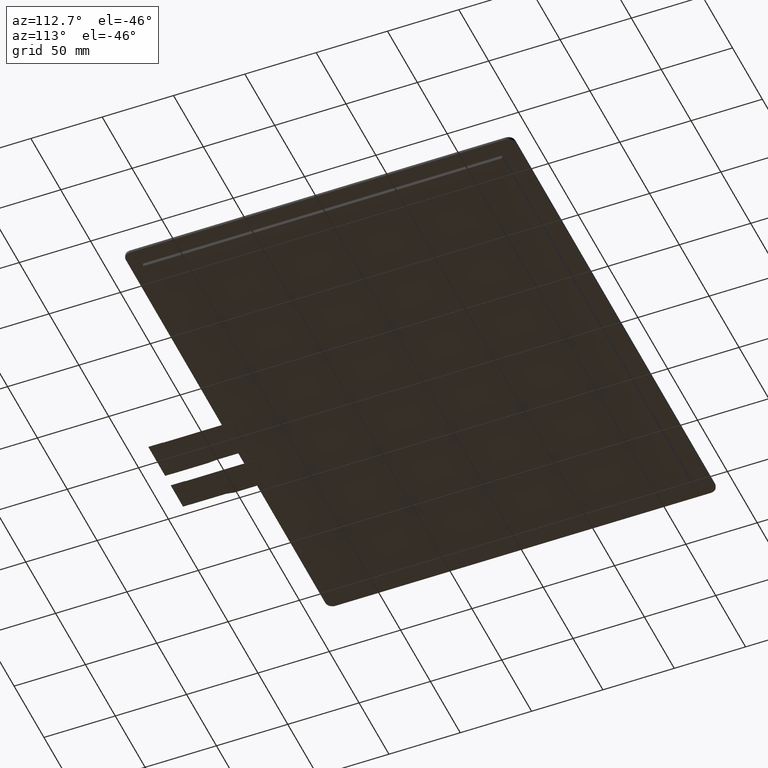
[diagram: clean part render]
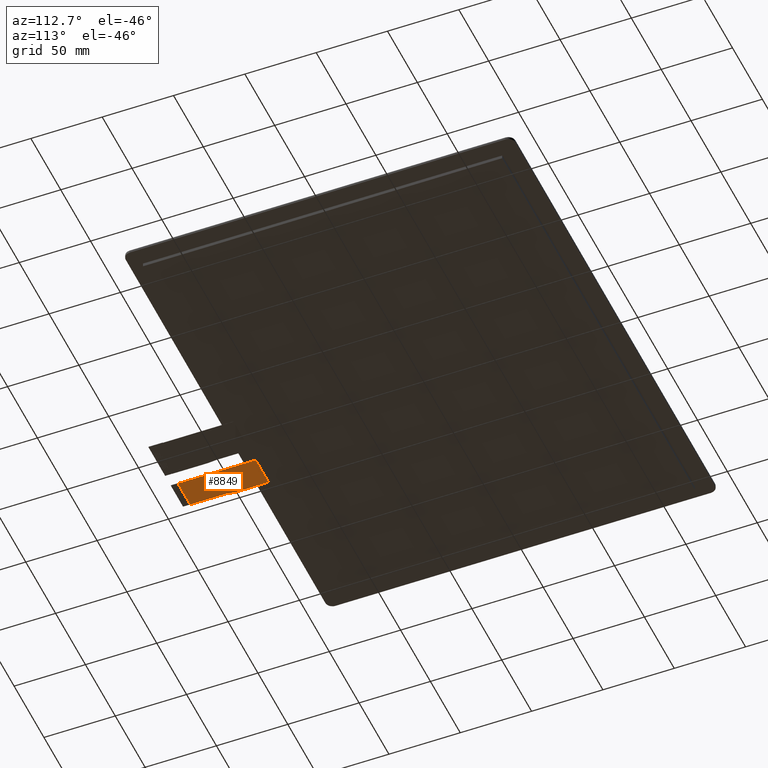
[diagram: same view with one face highlighted and labeled with its STEP entity id]
A machine part, auxiliary view. The second image highlights one B-rep face of the part: STEP entity #8849.
In plain terms, the highlighted planar face has unit normal (0, 0, -1).
Its self-contained STEP definition (entity closure, byte-faithful):
#482=FACE_OUTER_BOUND('',#909,.T.);
#909=EDGE_LOOP('',(#7967,#7968,#7969,#7970,#7971,#7972));
#2108=LINE('',#13835,#3353);
#2122=LINE('',#13862,#3367);
#2146=LINE('',#13911,#3391);
#2151=LINE('',#13922,#3396);
#2154=LINE('',#13926,#3399);
#2156=LINE('',#13930,#3401);
#3353=VECTOR('',#11319,10.);
#3367=VECTOR('',#11341,10.);
#3391=VECTOR('',#11389,10.);
#3396=VECTOR('',#11396,10.);
#3399=VECTOR('',#11401,10.);
#3401=VECTOR('',#11407,10.);
#4215=VERTEX_POINT('',#13832);
#4216=VERTEX_POINT('',#13834);
#4225=VERTEX_POINT('',#13860);
#4238=VERTEX_POINT('',#13910);
#4242=VERTEX_POINT('',#13919);
#4243=VERTEX_POINT('',#13921);
#5446=EDGE_CURVE('',#4216,#4215,#2108,.T.);
#5460=EDGE_CURVE('',#4215,#4225,#2122,.T.);
#5484=EDGE_CURVE('',#4238,#4216,#2146,.T.);
#5489=EDGE_CURVE('',#4243,#4242,#2151,.T.);
#5492=EDGE_CURVE('',#4225,#4243,#2154,.T.);
#5494=EDGE_CURVE('',#4238,#4242,#2156,.T.);
#7967=ORIENTED_EDGE('',*,*,#5446,.T.);
#7968=ORIENTED_EDGE('',*,*,#5460,.T.);
#7969=ORIENTED_EDGE('',*,*,#5492,.T.);
#7970=ORIENTED_EDGE('',*,*,#5489,.T.);
#7971=ORIENTED_EDGE('',*,*,#5494,.F.);
#7972=ORIENTED_EDGE('',*,*,#5484,.T.);
#8424=PLANE('',#9306);
#8849=ADVANCED_FACE('',(#482),#8424,.T.);
#9306=AXIS2_PLACEMENT_3D('',#13929,#11405,#11406);
#11319=DIRECTION('',(-1.,1.73303106282951E-15,0.));
#11341=DIRECTION('',(0.,1.,0.));
#11389=DIRECTION('',(4.44089209850063E-16,-1.,0.));
#11396=DIRECTION('',(-3.61261870245132E-16,1.,0.));
#11401=DIRECTION('',(-0.190808995376546,0.981627183447664,0.));
#11405=DIRECTION('center_axis',(0.,0.,-1.));
#11406=DIRECTION('ref_axis',(-1.,0.,0.));
#11407=DIRECTION('',(-1.,-1.65037798643566E-16,0.));
#13832=CARTESIAN_POINT('',(-50.75,-185.05,-1.35));
#13834=CARTESIAN_POINT('',(-30.25,-185.05,-1.35));
#13835=CARTESIAN_POINT('',(-35.625,-185.05,-1.35));
#13860=CARTESIAN_POINT('',(-50.75,-159.78,-1.35));
#13862=CARTESIAN_POINT('',(-50.75,-159.78,-1.35));
#13910=CARTESIAN_POINT('',(-30.25,-130.05,-1.35));
#13911=CARTESIAN_POINT('',(-30.25,-190.05,-1.35));
#13919=CARTESIAN_POINT('',(-51.75,-130.05,-1.35));
#13921=CARTESIAN_POINT('',(-51.75,-154.63544598403,-1.35));
#13922=CARTESIAN_POINT('',(-51.75,-130.05,-1.35));
#13926=CARTESIAN_POINT('',(-51.75,-154.63544598403,-1.35));
#13929=CARTESIAN_POINT('Origin',(-41.,-160.05,-1.35));
#13930=CARTESIAN_POINT('',(59.35,-130.05,-1.35));